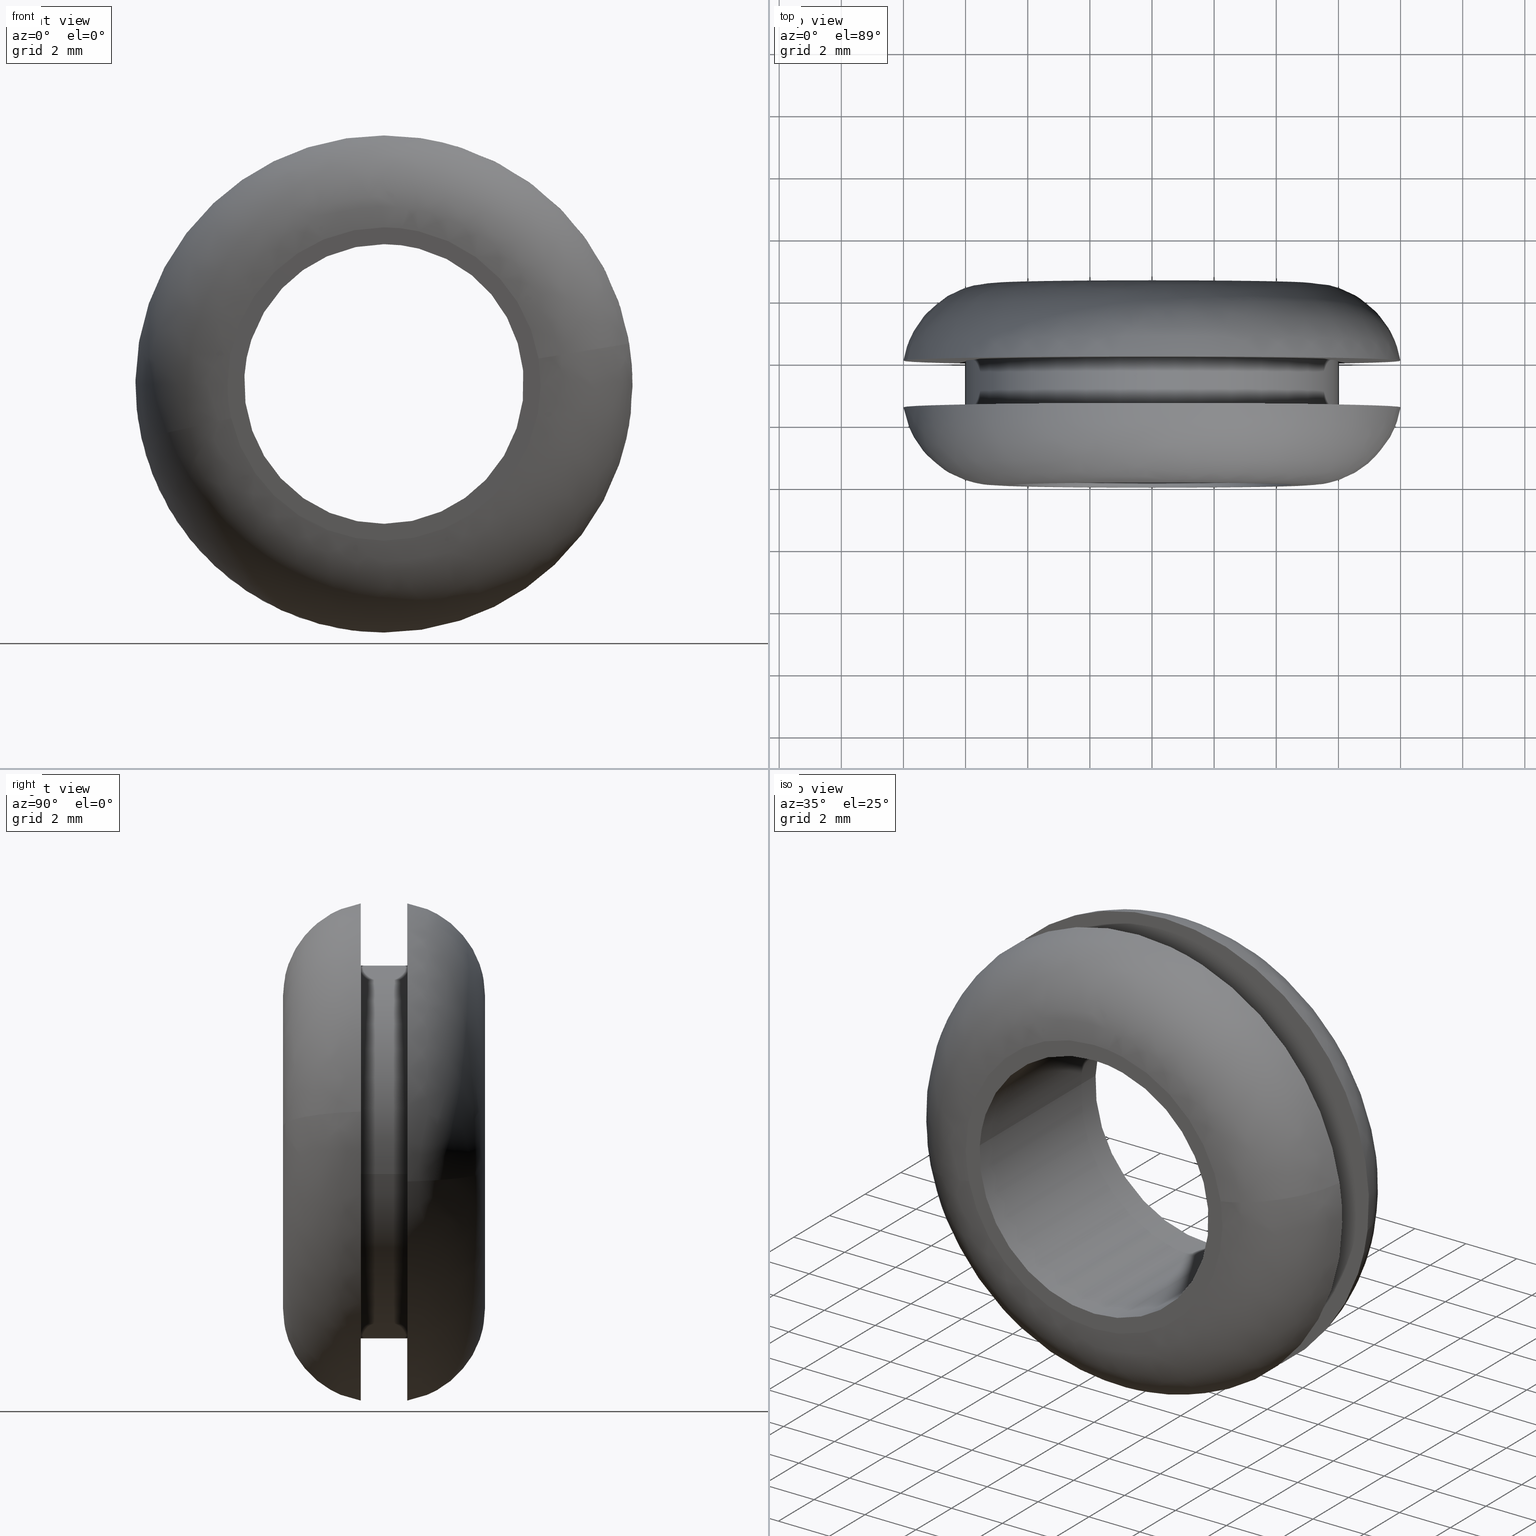
[diagram: canonical four-view strip — front | top / right | iso, engineering-drawing reading convention]
A machine part, canonical four-view strip (front | top / right | iso — engineering-drawing reading convention). The complete STEP part file that produces these views, byte-faithful:
ISO-10303-21;
HEADER;
/****************************************************************
 * Generated by software with PDE/Lib inside                    *
 * PDElib Version 4.4.1-0003, patched  Thursday August 19 11:58 *
 * International Technegroup Inc. (www.iti-oh.com)              *
 ****************************************************************/
FILE_DESCRIPTION((''),'2;1');
FILE_NAME('','2005-12-14T14:11:55',(''),(''),'','CADfix','');
FILE_SCHEMA(('AUTOMOTIVE_DESIGN'));
ENDSEC;
DATA;
#5=APPLICATION_CONTEXT('automotive design');
#6=APPLICATION_PROTOCOL_DEFINITION('Draft International Standard','automotive_design',1998,#5);
#7=PRODUCT_CONTEXT('None',#5,'mechanical');
#8=PRODUCT('grommet','','None',(#7));
#9=PRODUCT_RELATED_PRODUCT_CATEGORY('part','description',(#8));
#10=PRODUCT_DEFINITION_FORMATION('None','None',#8);
#11=PRODUCT_DEFINITION_CONTEXT('part definition',#5,'design');
#12=PRODUCT_DEFINITION('None','None',#10,#11);
#18=(NAMED_UNIT(*)PLANE_ANGLE_UNIT()SI_UNIT($,.RADIAN.));
#19=DIMENSIONAL_EXPONENTS(0.0,0.0,0.0,0.0,0.0,0.0,0.0);
#20=PLANE_ANGLE_MEASURE_WITH_UNIT(PLANE_ANGLE_MEASURE(0.017453292500000),#18);
#24=(CONVERSION_BASED_UNIT('DEGREE',#20)NAMED_UNIT(#19)PLANE_ANGLE_UNIT());
#28=(NAMED_UNIT(*)SI_UNIT($,.STERADIAN.)SOLID_ANGLE_UNIT());
#32=(LENGTH_UNIT()NAMED_UNIT(*)SI_UNIT(.MILLI.,.METRE.));
#34=UNCERTAINTY_MEASURE_WITH_UNIT(LENGTH_MEASURE(0.001000000000000),#32,'DISTANCE_ACCURACY_VALUE','');
#36=(GEOMETRIC_REPRESENTATION_CONTEXT(3)GLOBAL_UNCERTAINTY_ASSIGNED_CONTEXT((#34))GLOBAL_UNIT_ASSIGNED_CONTEXT((#24,#28,#32))REPRESENTATION_CONTEXT('None','None'));
#37=AXIS2_PLACEMENT_3D('',#38,#39,#40);
#38=CARTESIAN_POINT('',(0.0,0.0,0.0));
#39=DIRECTION('',(0.0,0.0,1.0));
#40=DIRECTION('',(1.0,0.0,0.0));
#41=ADVANCED_BREP_SHAPE_REPRESENTATION('',(#37,#917),#36);
#42=PRODUCT_DEFINITION_SHAPE('','',#12);
#43=SHAPE_DEFINITION_REPRESENTATION(#42,#41);
#44=CARTESIAN_POINT('',(5.958057158181998,4.037500000000000,-0.708205407940551));
#45=CARTESIAN_POINT('',(5.978325692691634,4.037500000000000,-0.537688371827866));
#46=CARTESIAN_POINT('',(5.988808790531200,4.037500000000000,-0.366291237209142));
#47=CARTESIAN_POINT('',(6.355100027740342,4.037500000000001,5.622517553322058));
#48=CARTESIAN_POINT('',(0.366291237209142,4.037500000000000,5.988808790531200));
#49=CARTESIAN_POINT('',(-5.622517553322059,4.037500000000001,6.355100027740342));
#50=CARTESIAN_POINT('',(-5.988808790531200,4.037500000000000,0.366291237209142));
#51=CARTESIAN_POINT('',(5.958057158181998,2.461562500000000,-0.708205407940551));
#52=CARTESIAN_POINT('',(5.978325692691634,2.461562500000000,-0.537688371827866));
#53=CARTESIAN_POINT('',(5.988808790531200,2.461562499999999,-0.366291237209142));
#54=CARTESIAN_POINT('',(6.355100027740342,2.461562500000000,5.622517553322058));
#55=CARTESIAN_POINT('',(0.366291237209142,2.461562499999999,5.988808790531200));
#56=CARTESIAN_POINT('',(-5.622517553322059,2.461562500000000,6.355100027740342));
#57=CARTESIAN_POINT('',(-5.988808790531200,2.461562499999999,0.366291237209142));
#65=(BOUNDED_SURFACE()B_SPLINE_SURFACE(2,1,((#44,#51),(#45,#52),(#46,#53),(#47,#54),(#48,#55),(#49,#56),(#50,#57)),.UNSPECIFIED.,.F.,.F.,.U.)B_SPLINE_SURFACE_WITH_KNOTS((3,2,2,3),(2,2),(0.0,0.397645019878172,10.338770516832451,20.279896013786729),(0.0,1.0),.UNSPECIFIED.)GEOMETRIC_REPRESENTATION_ITEM()RATIONAL_B_SPLINE_SURFACE(((0.977505800795127,0.977505800795127),(0.988284271247462,0.988284271247462),(1.0,1.0),(0.707106781186548,0.707106781186548),(1.0,1.0),(0.707106781186548,0.707106781186548),(1.0,1.0)))REPRESENTATION_ITEM('')SURFACE());
#66=CARTESIAN_POINT('',(5.958057818303820,2.499999999999991,-0.708199854361355));
#67=VERTEX_POINT('',#66);
#68=CARTESIAN_POINT('',(0.0,2.500000000000000,6.0));
#69=VERTEX_POINT('',#68);
#70=CARTESIAN_POINT('',(5.958057818303820,2.499999999999990,-0.708199854361355));
#71=CARTESIAN_POINT('',(6.0,2.500000000000000,-0.355341911766386));
#72=CARTESIAN_POINT('',(6.0,2.500000000000000,-3.061516E-016));
#73=CARTESIAN_POINT('',(6.0,2.500000000000000,6.0));
#74=CARTESIAN_POINT('',(0.0,2.500000000000000,6.0));
#82=(BOUNDED_CURVE()B_SPLINE_CURVE(2,(#70,#71,#72,#73,#74),.UNSPECIFIED.,.F.,.U.)B_SPLINE_CURVE_WITH_KNOTS((3,2,3),(0.229562631045684,0.250000000000000,0.500000000000000),.UNSPECIFIED.)CURVE()GEOMETRIC_REPRESENTATION_ITEM()RATIONAL_B_SPLINE_CURVE((0.956027062953443,0.976056132891569,1.0,0.707106781186548,1.0))REPRESENTATION_ITEM(''));
#83=EDGE_CURVE('',#67,#69,#82,.T.);
#84=ORIENTED_EDGE('',*,*,#83,.F.);
#85=CARTESIAN_POINT('',(5.958057810158673,4.0,-0.708199922886695));
#86=VERTEX_POINT('',#85);
#87=CARTESIAN_POINT('',(5.958057810158673,4.0,-0.708199922886695));
#88=CARTESIAN_POINT('',(5.958057818303820,2.499999999999991,-0.708199854361355));
#89=QUASI_UNIFORM_CURVE('',1,(#87,#88),.UNSPECIFIED.,.F.,.U.);
#90=EDGE_CURVE('',#86,#67,#89,.T.);
#91=ORIENTED_EDGE('',*,*,#90,.F.);
#92=CARTESIAN_POINT('',(0.0,4.0,6.0));
#93=VERTEX_POINT('',#92);
#94=CARTESIAN_POINT('',(5.958057810158673,4.000000000000000,-0.708199922886695));
#95=CARTESIAN_POINT('',(6.000000000000001,4.000000000000000,-0.355341946391267));
#96=CARTESIAN_POINT('',(6.0,4.0,-3.061516E-016));
#97=CARTESIAN_POINT('',(6.0,4.000000000000000,6.0));
#98=CARTESIAN_POINT('',(0.0,4.0,6.0));
#106=(BOUNDED_CURVE()B_SPLINE_CURVE(2,(#94,#95,#96,#97,#98),.UNSPECIFIED.,.F.,.U.)B_SPLINE_CURVE_WITH_KNOTS((3,2,3),(0.229562629101929,0.250000000000000,0.500000000000000),.UNSPECIFIED.)CURVE()GEOMETRIC_REPRESENTATION_ITEM()RATIONAL_B_SPLINE_CURVE((0.956027059143597,0.976056130614318,1.0,0.707106781186548,1.0))REPRESENTATION_ITEM(''));
#107=EDGE_CURVE('',#86,#93,#106,.T.);
#108=ORIENTED_EDGE('',*,*,#107,.T.);
#109=CARTESIAN_POINT('',(-5.988809104776754,4.0,0.366286099267417));
#110=VERTEX_POINT('',#109);
#111=CARTESIAN_POINT('',(0.0,4.0,6.0));
#112=CARTESIAN_POINT('',(-5.644241252809525,4.000000000000001,6.000000000000001));
#113=CARTESIAN_POINT('',(-5.988809104776754,4.0,0.366286099267417));
#121=(BOUNDED_CURVE()B_SPLINE_CURVE(2,(#111,#112,#113),.UNSPECIFIED.,.F.,.U.)B_SPLINE_CURVE_WITH_KNOTS((3,3),(0.500000000000000,0.739333110273986),.UNSPECIFIED.)CURVE()GEOMETRIC_REPRESENTATION_ITEM()RATIONAL_B_SPLINE_CURVE((1.0,0.719603819852869,0.976072358934200))REPRESENTATION_ITEM(''));
#122=EDGE_CURVE('',#93,#110,#121,.T.);
#123=ORIENTED_EDGE('',*,*,#122,.T.);
#124=CARTESIAN_POINT('',(-5.988809108703983,2.499999999999951,0.366286035055973));
#125=VERTEX_POINT('',#124);
#126=CARTESIAN_POINT('',(-5.988809104776754,4.0,0.366286099267417));
#127=CARTESIAN_POINT('',(-5.988809108703983,2.499999999999951,0.366286035055973));
#128=QUASI_UNIFORM_CURVE('',1,(#126,#127),.UNSPECIFIED.,.F.,.U.);
#129=EDGE_CURVE('',#110,#125,#128,.T.);
#130=ORIENTED_EDGE('',*,*,#129,.T.);
#131=CARTESIAN_POINT('',(0.0,2.500000000000000,6.0));
#132=CARTESIAN_POINT('',(-5.644241313439628,2.500000000000000,6.0));
#133=CARTESIAN_POINT('',(-5.988809108703984,2.499999999999951,0.366286035055973));
#141=(BOUNDED_CURVE()B_SPLINE_CURVE(2,(#131,#132,#133),.UNSPECIFIED.,.F.,.U.)B_SPLINE_CURVE_WITH_KNOTS((3,3),(0.500000000000000,0.739333112124017),.UNSPECIFIED.)CURVE()GEOMETRIC_REPRESENTATION_ITEM()RATIONAL_B_SPLINE_CURVE((1.0,0.719603817685423,0.976072362899173))REPRESENTATION_ITEM(''));
#142=EDGE_CURVE('',#69,#125,#141,.T.);
#143=ORIENTED_EDGE('',*,*,#142,.F.);
#144=EDGE_LOOP('',(#84,#91,#108,#123,#130,#143));
#145=FACE_OUTER_BOUND('',#144,.T.);
#146=ADVANCED_FACE('',(#145),#65,.T.);
#147=CARTESIAN_POINT('',(-5.988808790531200,4.037500000000000,0.366291237209142));
#148=CARTESIAN_POINT('',(-6.355100027740342,4.037500000000001,-5.622517553322059));
#149=CARTESIAN_POINT('',(-0.366291237209142,4.037500000000000,-5.988808790531200));
#150=CARTESIAN_POINT('',(5.289260945037006,4.037500000000001,-6.334717180395166));
#151=CARTESIAN_POINT('',(5.958057158181998,4.037500000000000,-0.708205407940551));
#152=CARTESIAN_POINT('',(-5.988808790531200,2.461562499999999,0.366291237209142));
#153=CARTESIAN_POINT('',(-6.355100027740342,2.461562500000000,-5.622517553322059));
#154=CARTESIAN_POINT('',(-0.366291237209142,2.461562499999999,-5.988808790531200));
#155=CARTESIAN_POINT('',(5.289260945037006,2.461562499999999,-6.334717180395166));
#156=CARTESIAN_POINT('',(5.958057158181998,2.461562500000000,-0.708205407940551));
#164=(BOUNDED_SURFACE()B_SPLINE_SURFACE(2,1,((#147,#152),(#148,#153),(#149,#154),(#150,#155),(#151,#156)),.UNSPECIFIED.,.F.,.F.,.U.)B_SPLINE_SURFACE_WITH_KNOTS((3,2,3),(2,2),(0.0,9.941125496954278,19.484605974030391),(0.0,1.0),.UNSPECIFIED.)GEOMETRIC_REPRESENTATION_ITEM()RATIONAL_B_SPLINE_SURFACE(((1.0,1.0),(0.707106781186548,0.707106781186548),(1.0,1.0),(0.718822509939086,0.718822509939086),(0.977505800795127,0.977505800795127)))REPRESENTATION_ITEM('')SURFACE());
#165=CARTESIAN_POINT('',(0.0,2.500000000000000,-6.0));
#166=VERTEX_POINT('',#165);
#167=CARTESIAN_POINT('',(0.0,2.500000000000000,-6.0));
#168=CARTESIAN_POINT('',(5.329052157948890,2.500000000000000,-6.0));
#169=CARTESIAN_POINT('',(5.958057818303820,2.499999999999990,-0.708199854361355));
#177=(BOUNDED_CURVE()B_SPLINE_CURVE(2,(#167,#168,#169),.UNSPECIFIED.,.F.,.U.)B_SPLINE_CURVE_WITH_KNOTS((3,3),(0.0,0.229562631045684),.UNSPECIFIED.)CURVE()GEOMETRIC_REPRESENTATION_ITEM()RATIONAL_B_SPLINE_CURVE((1.0,0.731050648294978,0.956027062953443))REPRESENTATION_ITEM(''));
#178=EDGE_CURVE('',#166,#67,#177,.T.);
#179=ORIENTED_EDGE('',*,*,#178,.F.);
#180=CARTESIAN_POINT('',(-5.988809108703984,2.499999999999951,0.366286035055973));
#181=CARTESIAN_POINT('',(-6.0,2.500000000000000,0.183313971421956));
#182=CARTESIAN_POINT('',(-6.0,2.500000000000000,-3.061516E-016));
#183=CARTESIAN_POINT('',(-6.0,2.500000000000000,-6.0));
#184=CARTESIAN_POINT('',(0.0,2.500000000000000,-6.0));
#192=(BOUNDED_CURVE()B_SPLINE_CURVE(2,(#180,#181,#182,#183,#184),.UNSPECIFIED.,.F.,.U.)B_SPLINE_CURVE_WITH_KNOTS((3,2,3),(0.739333112124017,0.750000000000000,1.0),.UNSPECIFIED.)CURVE()GEOMETRIC_REPRESENTATION_ITEM()RATIONAL_B_SPLINE_CURVE((0.976072362899173,0.987502963501124,1.0,0.707106781186548,1.0))REPRESENTATION_ITEM(''));
#193=EDGE_CURVE('',#125,#166,#192,.T.);
#194=ORIENTED_EDGE('',*,*,#193,.F.);
#195=ORIENTED_EDGE('',*,*,#129,.F.);
#196=CARTESIAN_POINT('',(0.0,4.0,-6.0));
#197=VERTEX_POINT('',#196);
#198=CARTESIAN_POINT('',(-5.988809104776754,4.0,0.366286099267417));
#199=CARTESIAN_POINT('',(-6.0,4.000000000000001,0.183314003617696));
#200=CARTESIAN_POINT('',(-6.0,4.0,-3.061516E-016));
#201=CARTESIAN_POINT('',(-6.0,4.000000000000000,-6.0));
#202=CARTESIAN_POINT('',(0.0,4.0,-6.0));
#210=(BOUNDED_CURVE()B_SPLINE_CURVE(2,(#198,#199,#200,#201,#202),.UNSPECIFIED.,.F.,.U.)B_SPLINE_CURVE_WITH_KNOTS((3,2,3),(0.739333110273986,0.750000000000000,1.0),.UNSPECIFIED.)CURVE()GEOMETRIC_REPRESENTATION_ITEM()RATIONAL_B_SPLINE_CURVE((0.976072358934200,0.987502961333678,1.0,0.707106781186548,1.0))REPRESENTATION_ITEM(''));
#211=EDGE_CURVE('',#110,#197,#210,.T.);
#212=ORIENTED_EDGE('',*,*,#211,.T.);
#213=CARTESIAN_POINT('',(0.0,4.0,-6.0));
#214=CARTESIAN_POINT('',(5.329052096226471,4.0,-6.000000000000001));
#215=CARTESIAN_POINT('',(5.958057810158673,4.000000000000000,-0.708199922886695));
#223=(BOUNDED_CURVE()B_SPLINE_CURVE(2,(#213,#214,#215),.UNSPECIFIED.,.F.,.U.)B_SPLINE_CURVE_WITH_KNOTS((3,3),(0.0,0.229562629101929),.UNSPECIFIED.)CURVE()GEOMETRIC_REPRESENTATION_ITEM()RATIONAL_B_SPLINE_CURVE((1.0,0.731050650572230,0.956027059143597))REPRESENTATION_ITEM(''));
#224=EDGE_CURVE('',#197,#86,#223,.T.);
#225=ORIENTED_EDGE('',*,*,#224,.T.);
#226=ORIENTED_EDGE('',*,*,#90,.T.);
#227=EDGE_LOOP('',(#179,#194,#195,#212,#225,#226));
#228=FACE_OUTER_BOUND('',#227,.T.);
#229=ADVANCED_FACE('',(#228),#164,.T.);
#230=CARTESIAN_POINT('',(4.468542868636499,6.662500000000001,-0.531154055955413));
#231=CARTESIAN_POINT('',(4.483744269518725,6.662500000000001,-0.403266278870900));
#232=CARTESIAN_POINT('',(4.491606592898400,6.662500000000001,-0.274718427906857));
#233=CARTESIAN_POINT('',(4.766325020805256,6.662500000000001,4.216888164991543));
#234=CARTESIAN_POINT('',(0.274718427906856,6.662500000000001,4.491606592898400));
#235=CARTESIAN_POINT('',(-4.216888164991543,6.662500000000001,4.766325020805256));
#236=CARTESIAN_POINT('',(-4.491606592898400,6.662500000000001,0.274718427906856));
#237=CARTESIAN_POINT('',(4.468542868636499,-0.166562500000001,-0.531154055955413));
#238=CARTESIAN_POINT('',(4.483744269518725,-0.166562500000001,-0.403266278870900));
#239=CARTESIAN_POINT('',(4.491606592898400,-0.166562500000001,-0.274718427906857));
#240=CARTESIAN_POINT('',(4.766325020805256,-0.166562500000001,4.216888164991543));
#241=CARTESIAN_POINT('',(0.274718427906856,-0.166562500000001,4.491606592898400));
#242=CARTESIAN_POINT('',(-4.216888164991543,-0.166562500000001,4.766325020805256));
#243=CARTESIAN_POINT('',(-4.491606592898400,-0.166562500000001,0.274718427906856));
#251=(BOUNDED_SURFACE()B_SPLINE_SURFACE(2,1,((#230,#237),(#231,#238),(#232,#239),(#233,#240),(#234,#241),(#235,#242),(#236,#243)),.UNSPECIFIED.,.F.,.F.,.U.)B_SPLINE_SURFACE_WITH_KNOTS((3,2,2,3),(2,2),(0.0,0.298233764908629,7.754077887624337,15.209922010340049),(0.0,6.829062500000004),.UNSPECIFIED.)GEOMETRIC_REPRESENTATION_ITEM()RATIONAL_B_SPLINE_SURFACE(((0.977505800795127,0.977505800795127),(0.988284271247462,0.988284271247462),(1.0,1.0),(0.707106781186548,0.707106781186548),(1.0,1.0),(0.707106781186548,0.707106781186548),(1.0,1.0)))REPRESENTATION_ITEM('')SURFACE());
#252=CARTESIAN_POINT('',(4.468542641703280,6.499999999999452,-0.531155965113607));
#253=VERTEX_POINT('',#252);
#254=CARTESIAN_POINT('',(0.0,6.500000000000000,4.500000000000000));
#255=VERTEX_POINT('',#254);
#256=CARTESIAN_POINT('',(4.468542641703280,6.499999999999452,-0.531155965113607));
#257=CARTESIAN_POINT('',(4.500000000000000,6.500000000000000,-0.266509503104442));
#258=CARTESIAN_POINT('',(4.500000000000000,6.500000000000000,-3.061516E-016));
#259=CARTESIAN_POINT('',(4.500000000000000,6.500000000000000,4.500000000000000));
#260=CARTESIAN_POINT('',(0.0,6.500000000000000,4.500000000000000));
#268=(BOUNDED_CURVE()B_SPLINE_CURVE(2,(#256,#257,#258,#259,#260),.UNSPECIFIED.,.F.,.U.)B_SPLINE_CURVE_WITH_KNOTS((3,2,3),(0.229562401310019,0.250000000000000,0.500000000000000),.UNSPECIFIED.)CURVE()GEOMETRIC_REPRESENTATION_ITEM()RATIONAL_B_SPLINE_CURVE((0.956026612661954,0.976055863739495,1.0,0.707106781186547,1.0))REPRESENTATION_ITEM(''));
#269=EDGE_CURVE('',#253,#255,#268,.T.);
#270=ORIENTED_EDGE('',*,*,#269,.F.);
#271=CARTESIAN_POINT('',(4.468542641703280,-9.385989E-016,-0.531155965113607));
#272=VERTEX_POINT('',#271);
#273=CARTESIAN_POINT('',(4.468542641703280,6.499999999999452,-0.531155965113607));
#274=CARTESIAN_POINT('',(4.468542641703280,-9.385989E-016,-0.531155965113607));
#275=QUASI_UNIFORM_CURVE('',1,(#273,#274),.UNSPECIFIED.,.F.,.U.);
#276=EDGE_CURVE('',#253,#272,#275,.T.);
#277=ORIENTED_EDGE('',*,*,#276,.T.);
#278=CARTESIAN_POINT('',(0.0,-8.266093E-016,4.500000000000000));
#279=VERTEX_POINT('',#278);
#280=CARTESIAN_POINT('',(4.468542641703280,-9.385989E-016,-0.531155965113607));
#281=CARTESIAN_POINT('',(4.500000000000000,-8.266093E-016,-0.266509503104442));
#282=CARTESIAN_POINT('',(4.500000000000000,-8.266093E-016,-3.061516E-016));
#283=CARTESIAN_POINT('',(4.500000000000000,-8.266093E-016,4.500000000000000));
#284=CARTESIAN_POINT('',(0.0,-8.266093E-016,4.500000000000000));
#292=(BOUNDED_CURVE()B_SPLINE_CURVE(2,(#280,#281,#282,#283,#284),.UNSPECIFIED.,.F.,.U.)B_SPLINE_CURVE_WITH_KNOTS((3,2,3),(0.229562401310019,0.250000000000000,0.500000000000000),.UNSPECIFIED.)CURVE()GEOMETRIC_REPRESENTATION_ITEM()RATIONAL_B_SPLINE_CURVE((0.956026612661954,0.976055863739495,1.0,0.707106781186547,1.0))REPRESENTATION_ITEM(''));
#293=EDGE_CURVE('',#272,#279,#292,.T.);
#294=ORIENTED_EDGE('',*,*,#293,.T.);
#295=CARTESIAN_POINT('',(-4.491606917686051,-9.545384E-016,0.274713117572676));
#296=VERTEX_POINT('',#295);
#297=CARTESIAN_POINT('',(0.0,-8.266093E-016,4.500000000000000));
#298=CARTESIAN_POINT('',(-4.233182315228993,-8.266093E-016,4.500000000000001));
#299=CARTESIAN_POINT('',(-4.491606917686051,-9.545384E-016,0.274713117572676));
#307=(BOUNDED_CURVE()B_SPLINE_CURVE(2,(#297,#298,#299),.UNSPECIFIED.,.F.,.U.)B_SPLINE_CURVE_WITH_KNOTS((3,3),(0.500000000000000,0.739333166240523),.UNSPECIFIED.)CURVE()GEOMETRIC_REPRESENTATION_ITEM()RATIONAL_B_SPLINE_CURVE((1.0,0.719603754283992,0.976072478881328))REPRESENTATION_ITEM(''));
#308=EDGE_CURVE('',#279,#296,#307,.T.);
#309=ORIENTED_EDGE('',*,*,#308,.T.);
#310=CARTESIAN_POINT('',(-4.491606921645149,6.499999999999988,0.274713052839469));
#311=VERTEX_POINT('',#310);
#312=CARTESIAN_POINT('',(-4.491606921645149,6.499999999999988,0.274713052839469));
#313=CARTESIAN_POINT('',(-4.491606917686051,-9.545384E-016,0.274713117572676));
#314=QUASI_UNIFORM_CURVE('',1,(#312,#313),.UNSPECIFIED.,.F.,.U.);
#315=EDGE_CURVE('',#311,#296,#314,.T.);
#316=ORIENTED_EDGE('',*,*,#315,.F.);
#317=CARTESIAN_POINT('',(0.0,6.500000000000000,4.500000000000000));
#318=CARTESIAN_POINT('',(-4.233182376351771,6.500000000000000,4.500000000000000));
#319=CARTESIAN_POINT('',(-4.491606921645149,6.499999999999988,0.274713052839469));
#327=(BOUNDED_CURVE()B_SPLINE_CURVE(2,(#317,#318,#319),.UNSPECIFIED.,.F.,.U.)B_SPLINE_CURVE_WITH_KNOTS((3,3),(0.500000000000000,0.739333168727275),.UNSPECIFIED.)CURVE()GEOMETRIC_REPRESENTATION_ITEM()RATIONAL_B_SPLINE_CURVE((1.0,0.719603751370581,0.976072484210920))REPRESENTATION_ITEM(''));
#328=EDGE_CURVE('',#255,#311,#327,.T.);
#329=ORIENTED_EDGE('',*,*,#328,.F.);
#330=EDGE_LOOP('',(#270,#277,#294,#309,#316,#329));
#331=FACE_OUTER_BOUND('',#330,.T.);
#332=ADVANCED_FACE('',(#331),#251,.F.);
#333=CARTESIAN_POINT('',(-4.491606592898400,6.662500000000001,0.274718427906856));
#334=CARTESIAN_POINT('',(-4.766325020805256,6.662500000000001,-4.216888164991544));
#335=CARTESIAN_POINT('',(-0.274718427906856,6.662500000000001,-4.491606592898400));
#336=CARTESIAN_POINT('',(3.966945708777753,6.662500000000001,-4.751037885296373));
#337=CARTESIAN_POINT('',(4.468542868636499,6.662500000000001,-0.531154055955413));
#338=CARTESIAN_POINT('',(-4.491606592898400,-0.166562500000001,0.274718427906856));
#339=CARTESIAN_POINT('',(-4.766325020805256,-0.166562500000001,-4.216888164991544));
#340=CARTESIAN_POINT('',(-0.274718427906856,-0.166562500000001,-4.491606592898400));
#341=CARTESIAN_POINT('',(3.966945708777753,-0.166562500000001,-4.751037885296373));
#342=CARTESIAN_POINT('',(4.468542868636499,-0.166562500000001,-0.531154055955413));
#350=(BOUNDED_SURFACE()B_SPLINE_SURFACE(2,1,((#333,#338),(#334,#339),(#335,#340),(#336,#341),(#337,#342)),.UNSPECIFIED.,.F.,.F.,.U.)B_SPLINE_SURFACE_WITH_KNOTS((3,2,3),(2,2),(0.0,7.455844122715709,14.613454480522790),(0.0,6.829062500000004),.UNSPECIFIED.)GEOMETRIC_REPRESENTATION_ITEM()RATIONAL_B_SPLINE_SURFACE(((1.0,1.0),(0.707106781186548,0.707106781186548),(1.0,1.0),(0.718822509939086,0.718822509939086),(0.977505800795127,0.977505800795127)))REPRESENTATION_ITEM('')SURFACE());
#351=CARTESIAN_POINT('',(0.0,6.500000000000000,-4.500000000000000));
#352=VERTEX_POINT('',#351);
#353=CARTESIAN_POINT('',(0.0,6.500000000000000,-4.500000000000000));
#354=CARTESIAN_POINT('',(3.996783647157785,6.500000000000002,-4.500000000000000));
#355=CARTESIAN_POINT('',(4.468542641703280,6.499999999999452,-0.531155965113607));
#363=(BOUNDED_CURVE()B_SPLINE_CURVE(2,(#353,#354,#355),.UNSPECIFIED.,.F.,.U.)B_SPLINE_CURVE_WITH_KNOTS((3,3),(0.0,0.229562401310019),.UNSPECIFIED.)CURVE()GEOMETRIC_REPRESENTATION_ITEM()RATIONAL_B_SPLINE_CURVE((1.0,0.731050917447052,0.956026612661954))REPRESENTATION_ITEM(''));
#364=EDGE_CURVE('',#352,#253,#363,.T.);
#365=ORIENTED_EDGE('',*,*,#364,.F.);
#366=CARTESIAN_POINT('',(-4.491606921645149,6.499999999999988,0.274713052839469));
#367=CARTESIAN_POINT('',(-4.500000000000000,6.500000000000000,0.137484739774620));
#368=CARTESIAN_POINT('',(-4.500000000000000,6.500000000000000,-3.061516E-016));
#369=CARTESIAN_POINT('',(-4.500000000000000,6.500000000000000,-4.500000000000000));
#370=CARTESIAN_POINT('',(0.0,6.500000000000000,-4.500000000000000));
#378=(BOUNDED_CURVE()B_SPLINE_CURVE(2,(#366,#367,#368,#369,#370),.UNSPECIFIED.,.F.,.U.)B_SPLINE_CURVE_WITH_KNOTS((3,2,3),(0.739333168727275,0.750000000000000,1.0),.UNSPECIFIED.)CURVE()GEOMETRIC_REPRESENTATION_ITEM()RATIONAL_B_SPLINE_CURVE((0.976072484210920,0.987503029815966,1.0,0.707106781186547,1.0))REPRESENTATION_ITEM(''));
#379=EDGE_CURVE('',#311,#352,#378,.T.);
#380=ORIENTED_EDGE('',*,*,#379,.F.);
#381=ORIENTED_EDGE('',*,*,#315,.T.);
#382=CARTESIAN_POINT('',(0.0,-8.266093E-016,-4.500000000000000));
#383=VERTEX_POINT('',#382);
#384=CARTESIAN_POINT('',(-4.491606917686051,-9.545384E-016,0.274713117572676));
#385=CARTESIAN_POINT('',(-4.500000000000000,-8.266093E-016,0.137484772231970));
#386=CARTESIAN_POINT('',(-4.500000000000000,-8.266093E-016,-3.061516E-016));
#387=CARTESIAN_POINT('',(-4.500000000000000,-8.266093E-016,-4.500000000000000));
#388=CARTESIAN_POINT('',(0.0,-8.266093E-016,-4.500000000000000));
#396=(BOUNDED_CURVE()B_SPLINE_CURVE(2,(#384,#385,#386,#387,#388),.UNSPECIFIED.,.F.,.U.)B_SPLINE_CURVE_WITH_KNOTS((3,2,3),(0.739333166240523,0.750000000000000,1.0),.UNSPECIFIED.)CURVE()GEOMETRIC_REPRESENTATION_ITEM()RATIONAL_B_SPLINE_CURVE((0.976072478881328,0.987503026902556,1.0,0.707106781186547,1.0))REPRESENTATION_ITEM(''));
#397=EDGE_CURVE('',#296,#383,#396,.T.);
#398=ORIENTED_EDGE('',*,*,#397,.T.);
#399=CARTESIAN_POINT('',(0.0,-8.266093E-016,-4.500000000000000));
#400=CARTESIAN_POINT('',(3.996783647157785,-8.266093E-016,-4.500000000000000));
#401=CARTESIAN_POINT('',(4.468542641703280,-9.385989E-016,-0.531155965113607));
#409=(BOUNDED_CURVE()B_SPLINE_CURVE(2,(#399,#400,#401),.UNSPECIFIED.,.F.,.U.)B_SPLINE_CURVE_WITH_KNOTS((3,3),(0.0,0.229562401310019),.UNSPECIFIED.)CURVE()GEOMETRIC_REPRESENTATION_ITEM()RATIONAL_B_SPLINE_CURVE((1.0,0.731050917447052,0.956026612661954))REPRESENTATION_ITEM(''));
#410=EDGE_CURVE('',#383,#272,#409,.T.);
#411=ORIENTED_EDGE('',*,*,#410,.T.);
#412=ORIENTED_EDGE('',*,*,#276,.F.);
#413=EDGE_LOOP('',(#365,#380,#381,#398,#411,#412));
#414=FACE_OUTER_BOUND('',#413,.T.);
#415=ADVANCED_FACE('',(#414),#350,.F.);
#416=CARTESIAN_POINT('',(4.816963873766415,6.493922733300470,-0.574501894876386));
#417=CARTESIAN_POINT('',(5.359496714422442,6.493922733300471,3.974414509192696));
#418=CARTESIAN_POINT('',(0.849054761482396,6.493922733300471,4.776222293862730));
#419=CARTESIAN_POINT('',(-3.927167532380334,6.493922733300472,5.625277055345126));
#420=CARTESIAN_POINT('',(-4.776222293862730,6.493922733300471,0.849054761482397));
#421=CARTESIAN_POINT('',(7.673148822881862,6.677290290301736,-0.915148764644421));
#422=CARTESIAN_POINT('',(8.537372706794766,6.677290290301735,6.331015721114658));
#423=CARTESIAN_POINT('',(1.352495828152607,6.677290290301738,7.608249808882023));
#424=CARTESIAN_POINT('',(-6.255753980729413,6.677290290301737,8.960745637034625));
#425=CARTESIAN_POINT('',(-7.608249808882023,6.677290290301738,1.352495828152607));
#426=CARTESIAN_POINT('',(7.969368037149914,3.810504205938126,-0.950477761156643));
#427=CARTESIAN_POINT('',(8.866954980447375,3.810504205938124,6.575422358561175));
#428=CARTESIAN_POINT('',(1.404708454385198,3.810504205938125,7.901963619517538));
#429=CARTESIAN_POINT('',(-6.497255165132343,3.810504205938126,9.306672073902739));
#430=CARTESIAN_POINT('',(-7.901963619517538,3.810504205938125,1.404708454385198));
#438=(BOUNDED_SURFACE()B_SPLINE_SURFACE(2,2,((#416,#421,#426),(#417,#422,#427),(#418,#423,#428),(#419,#424,#429),(#420,#425,#430)),.UNSPECIFIED.,.F.,.F.,.U.)B_SPLINE_SURFACE_WITH_KNOTS((3,2,3),(3,3),(0.0,12.765753827807099,26.063414065106159),(0.0,4.830461721013430),.UNSPECIFIED.)GEOMETRIC_REPRESENTATION_ITEM()RATIONAL_B_SPLINE_SURFACE(((0.897575269471763,0.646736018057357,0.896136064804100),(0.660044480079939,0.475586341676794,0.658986140875523),(0.918230120723227,0.661618598612188,0.916757797319628),(0.649286745053136,0.467834997637819,0.648245655190352),(0.918230120723227,0.661618598612188,0.916757797319628)))REPRESENTATION_ITEM('')SURFACE());
#439=CARTESIAN_POINT('',(7.943702172782295,4.000001249126272,-0.947412622172427));
#440=VERTEX_POINT('',#439);
#441=CARTESIAN_POINT('',(0.0,3.999999988287755,7.999999893529521));
#442=VERTEX_POINT('',#441);
#443=CARTESIAN_POINT('',(7.943702172782295,4.000001249126272,-0.947412622172427));
#444=CARTESIAN_POINT('',(7.999999687489360,4.000001215867594,-0.475378964967168));
#445=CARTESIAN_POINT('',(7.999999693776911,4.000001178406585,0.000000023823670));
#446=CARTESIAN_POINT('',(7.999999799588103,4.000000547987328,7.999999904733527));
#447=CARTESIAN_POINT('',(0.0,3.999999988287755,7.999999893529521));
#455=(BOUNDED_CURVE()B_SPLINE_CURVE(2,(#443,#444,#445,#446,#447),.UNSPECIFIED.,.F.,.U.)B_SPLINE_CURVE_WITH_KNOTS((3,2,3),(0.229495701666636,0.250000000000000,0.500000000000000),.UNSPECIFIED.)CURVE()GEOMETRIC_REPRESENTATION_ITEM()RATIONAL_B_SPLINE_CURVE((0.955895920418741,0.975977720246519,1.0,0.707106781186547,1.0))REPRESENTATION_ITEM(''));
#456=EDGE_CURVE('',#440,#442,#455,.T.);
#457=ORIENTED_EDGE('',*,*,#456,.F.);
#458=CARTESIAN_POINT('',(5.006478474712188,6.500000000000000,-0.597104617303462));
#459=VERTEX_POINT('',#458);
#460=CARTESIAN_POINT('',(5.006478474712188,6.500000000000000,-0.597104617303462));
#461=CARTESIAN_POINT('',(7.524097718139170,6.499999999972721,-0.897369945380144));
#462=CARTESIAN_POINT('',(7.943702172782297,4.000001249126272,-0.947412622172427));
#470=(BOUNDED_CURVE()B_SPLINE_CURVE(2,(#460,#461,#462),.UNSPECIFIED.,.F.,.U.)B_SPLINE_CURVE_WITH_KNOTS((3,3),(-1.711130095560332,-0.293356810133895),.UNSPECIFIED.)CURVE()GEOMETRIC_REPRESENTATION_ITEM()RATIONAL_B_SPLINE_CURVE((0.875824093680171,0.668421898418173,0.874515480675706))REPRESENTATION_ITEM(''));
#471=EDGE_CURVE('',#459,#440,#470,.T.);
#472=ORIENTED_EDGE('',*,*,#471,.F.);
#473=CARTESIAN_POINT('',(0.0,6.500000000000000,5.041960000000000));
#474=VERTEX_POINT('',#473);
#475=CARTESIAN_POINT('',(5.006478474712188,6.500000000000000,-0.597104617303462));
#476=CARTESIAN_POINT('',(5.041960000000000,6.500000000000000,-0.299606511386027));
#477=CARTESIAN_POINT('',(5.041960000000000,6.500000000000000,-3.061516E-016));
#478=CARTESIAN_POINT('',(5.041960000000000,6.500000000000001,5.041960000000000));
#479=CARTESIAN_POINT('',(0.0,6.500000000000000,5.041960000000000));
#487=(BOUNDED_CURVE()B_SPLINE_CURVE(2,(#475,#476,#477,#478,#479),.UNSPECIFIED.,.F.,.U.)B_SPLINE_CURVE_WITH_KNOTS((3,2,3),(0.229495616428847,0.250000000000000,0.500000000000000),.UNSPECIFIED.)CURVE()GEOMETRIC_REPRESENTATION_ITEM()RATIONAL_B_SPLINE_CURVE((0.955895753455941,0.975977620384237,1.0,0.707106781186548,1.0))REPRESENTATION_ITEM(''));
#488=EDGE_CURVE('',#459,#474,#487,.T.);
#489=ORIENTED_EDGE('',*,*,#488,.T.);
#490=CARTESIAN_POINT('',(-4.964133992170910,6.500000000000000,0.882459262458416));
#491=VERTEX_POINT('',#490);
#492=CARTESIAN_POINT('',(0.0,6.500000000000000,5.041960000000000));
#493=CARTESIAN_POINT('',(-4.224711978346065,6.500000000000000,5.041959999999999));
#494=CARTESIAN_POINT('',(-4.964133992170910,6.500000000000000,0.882459262458416));
#502=(BOUNDED_CURVE()B_SPLINE_CURVE(2,(#492,#493,#494),.UNSPECIFIED.,.F.,.U.)B_SPLINE_CURVE_WITH_KNOTS((3,3),(0.500000000000000,0.719918253209073),.UNSPECIFIED.)CURVE()GEOMETRIC_REPRESENTATION_ITEM()RATIONAL_B_SPLINE_CURVE((1.0,0.742349739767051,0.937995440888447))REPRESENTATION_ITEM(''));
#503=EDGE_CURVE('',#474,#491,#502,.T.);
#504=ORIENTED_EDGE('',*,*,#503,.T.);
#505=CARTESIAN_POINT('',(-7.876514917801297,4.000000767646103,1.400181751897144));
#506=VERTEX_POINT('',#505);
#507=CARTESIAN_POINT('',(-4.964133992170910,6.500000000000000,0.882459262458416));
#508=CARTESIAN_POINT('',(-7.460459782287119,6.499999999911852,1.326222255441417));
#509=CARTESIAN_POINT('',(-7.876514917801297,4.000000767646104,1.400181751897144));
#517=(BOUNDED_CURVE()B_SPLINE_CURVE(2,(#507,#508,#509),.UNSPECIFIED.,.F.,.U.)B_SPLINE_CURVE_WITH_KNOTS((3,3),(-1.711130095533902,-0.293356631512929),.UNSPECIFIED.)CURVE()GEOMETRIC_REPRESENTATION_ITEM()RATIONAL_B_SPLINE_CURVE((0.895978410521985,0.683803484079920,0.894639737068132))REPRESENTATION_ITEM(''));
#518=EDGE_CURVE('',#491,#506,#517,.T.);
#519=ORIENTED_EDGE('',*,*,#518,.T.);
#520=CARTESIAN_POINT('',(0.0,3.999999988287755,7.999999893529521));
#521=CARTESIAN_POINT('',(-6.703287421846416,3.999999988287756,7.999999893529521));
#522=CARTESIAN_POINT('',(-7.876514917801297,4.000000767646103,1.400181751897144));
#530=(BOUNDED_CURVE()B_SPLINE_CURVE(2,(#520,#521,#522),.UNSPECIFIED.,.F.,.U.)B_SPLINE_CURVE_WITH_KNOTS((3,3),(0.500000000000000,0.719918309591825),.UNSPECIFIED.)CURVE()GEOMETRIC_REPRESENTATION_ITEM()RATIONAL_B_SPLINE_CURVE((1.0,0.742349673710548,0.937995541207963))REPRESENTATION_ITEM(''));
#531=EDGE_CURVE('',#442,#506,#530,.T.);
#532=ORIENTED_EDGE('',*,*,#531,.F.);
#533=EDGE_LOOP('',(#457,#472,#489,#504,#519,#532));
#534=FACE_OUTER_BOUND('',#533,.T.);
#535=ADVANCED_FACE('',(#534),#438,.T.);
#536=CARTESIAN_POINT('',(-4.776222293862730,6.493922733300471,0.849054761482396));
#537=CARTESIAN_POINT('',(-5.625277055345126,6.493922733300472,-3.927167532380336));
#538=CARTESIAN_POINT('',(-0.849054761482396,6.493922733300471,-4.776222293862730));
#539=CARTESIAN_POINT('',(3.927167532380334,6.493922733300472,-5.625277055345126));
#540=CARTESIAN_POINT('',(4.776222293862730,6.493922733300471,-0.849054761482396));
#541=CARTESIAN_POINT('',(4.800521852909155,6.493922733300471,-0.712361463342321));
#542=CARTESIAN_POINT('',(4.816963842059988,6.493922733300469,-0.574502160721765));
#543=CARTESIAN_POINT('',(-7.608249808882023,6.677290290301738,1.352495828152605));
#544=CARTESIAN_POINT('',(-8.960745637034624,6.677290290301737,-6.255753980729417));
#545=CARTESIAN_POINT('',(-1.352495828152605,6.677290290301738,-7.608249808882023));
#546=CARTESIAN_POINT('',(6.255753980729415,6.677290290301737,-8.960745637034625));
#547=CARTESIAN_POINT('',(7.608249808882023,6.677290290301738,-1.352495828152606));
#548=CARTESIAN_POINT('',(7.646957621059949,6.677290290301739,-1.134751197466962));
#549=CARTESIAN_POINT('',(7.673148772375331,6.677290290301736,-0.915149188120954));
#550=CARTESIAN_POINT('',(-7.901963619517539,3.810504205938125,1.404708454385196));
#551=CARTESIAN_POINT('',(-9.306672073902735,3.810504205938126,-6.497255165132343));
#552=CARTESIAN_POINT('',(-1.404708454385197,3.810504205938125,-7.901963619517539));
#553=CARTESIAN_POINT('',(6.497255165132343,3.810504205938126,-9.306672073902739));
#554=CARTESIAN_POINT('',(7.901963619517538,3.810504205938125,-1.404708454385197));
#555=CARTESIAN_POINT('',(7.942165733184212,3.810504205938126,-1.178557868738737));
#556=CARTESIAN_POINT('',(7.969367984693595,3.810504205938126,-0.950478200981338));
#564=(BOUNDED_SURFACE()B_SPLINE_SURFACE(2,2,((#536,#543,#550),(#537,#544,#551),(#538,#545,#552),(#539,#546,#553),(#540,#547,#554),(#541,#548,#555),(#542,#549,#556)),.UNSPECIFIED.,.F.,.F.,.U.)B_SPLINE_SURFACE_WITH_KNOTS((3,2,2,3),(3,3),(0.0,13.297660237299061,26.595320474598129,27.127226376824609),(0.0,4.830461721013431),.UNSPECIFIED.)GEOMETRIC_REPRESENTATION_ITEM()RATIONAL_B_SPLINE_SURFACE(((0.918230120723227,0.661618598612188,0.916757797319628),(0.649286745053136,0.467834997637819,0.648245655190352),(0.918230120723227,0.661618598612188,0.916757797319628),(0.649286745053136,0.467834997637819,0.648245655190352),(0.918230120723227,0.661618598612188,0.916757797319628),(0.907472395955798,0.653867261965471,0.906017321877383),(0.897575288349015,0.646736031659112,0.896136083651083)))REPRESENTATION_ITEM('')SURFACE());
#565=CARTESIAN_POINT('',(0.0,3.999999988287755,-7.999999893529521));
#566=VERTEX_POINT('',#565);
#567=CARTESIAN_POINT('',(0.0,3.999999988287755,-7.999999893529521));
#568=CARTESIAN_POINT('',(7.102569261442119,4.000000618707014,-7.999999880909854));
#569=CARTESIAN_POINT('',(7.943702172782295,4.000001249126272,-0.947412622172427));
#577=(BOUNDED_CURVE()B_SPLINE_CURVE(2,(#567,#568,#569),.UNSPECIFIED.,.F.,.U.)B_SPLINE_CURVE_WITH_KNOTS((3,3),(0.0,0.229495701666636),.UNSPECIFIED.)CURVE()GEOMETRIC_REPRESENTATION_ITEM()RATIONAL_B_SPLINE_CURVE((1.0,0.731129060940029,0.955895920418741))REPRESENTATION_ITEM(''));
#578=EDGE_CURVE('',#566,#440,#577,.T.);
#579=ORIENTED_EDGE('',*,*,#578,.F.);
#580=CARTESIAN_POINT('',(-7.876514917801297,4.000000767646103,1.400181751897144));
#581=CARTESIAN_POINT('',(-7.999999893529521,3.999999988287756,0.705536075905622));
#582=CARTESIAN_POINT('',(-7.999999893529521,3.999999988287755,-3.061516E-016));
#583=CARTESIAN_POINT('',(-7.999999893529521,3.999999988287755,-7.999999893529521));
#584=CARTESIAN_POINT('',(0.0,3.999999988287755,-7.999999893529521));
#592=(BOUNDED_CURVE()B_SPLINE_CURVE(2,(#580,#581,#582,#583,#584),.UNSPECIFIED.,.F.,.U.)B_SPLINE_CURVE_WITH_KNOTS((3,2,3),(0.719918309591825,0.750000000000000,1.0),.UNSPECIFIED.)CURVE()GEOMETRIC_REPRESENTATION_ITEM()RATIONAL_B_SPLINE_CURVE((0.937995541207963,0.964757107476000,1.0,0.707106781186547,1.0))REPRESENTATION_ITEM(''));
#593=EDGE_CURVE('',#506,#566,#592,.T.);
#594=ORIENTED_EDGE('',*,*,#593,.F.);
#595=ORIENTED_EDGE('',*,*,#518,.F.);
#596=CARTESIAN_POINT('',(0.0,6.500000000000000,-5.041960000000000));
#597=VERTEX_POINT('',#596);
#598=CARTESIAN_POINT('',(-4.964133992170910,6.500000000000000,0.882459262458416));
#599=CARTESIAN_POINT('',(-5.041960000000000,6.500000000000000,0.444661453959631));
#600=CARTESIAN_POINT('',(-5.041960000000000,6.500000000000000,-3.061516E-016));
#601=CARTESIAN_POINT('',(-5.041960000000000,6.500000000000001,-5.041960000000000));
#602=CARTESIAN_POINT('',(0.0,6.500000000000000,-5.041960000000000));
#610=(BOUNDED_CURVE()B_SPLINE_CURVE(2,(#598,#599,#600,#601,#602),.UNSPECIFIED.,.F.,.U.)B_SPLINE_CURVE_WITH_KNOTS((3,2,3),(0.719918253209072,0.750000000000000,1.0),.UNSPECIFIED.)CURVE()GEOMETRIC_REPRESENTATION_ITEM()RATIONAL_B_SPLINE_CURVE((0.937995440888446,0.964757041419496,1.0,0.707106781186548,1.0))REPRESENTATION_ITEM(''));
#611=EDGE_CURVE('',#491,#597,#610,.T.);
#612=ORIENTED_EDGE('',*,*,#611,.T.);
#613=CARTESIAN_POINT('',(0.0,6.500000000000000,-5.041960000000000));
#614=CARTESIAN_POINT('',(4.476356616450283,6.500000000000001,-5.041959999999999));
#615=CARTESIAN_POINT('',(5.006478474712187,6.500000000000000,-0.597104617303462));
#623=(BOUNDED_CURVE()B_SPLINE_CURVE(2,(#613,#614,#615),.UNSPECIFIED.,.F.,.U.)B_SPLINE_CURVE_WITH_KNOTS((3,3),(0.0,0.229495616428847),.UNSPECIFIED.)CURVE()GEOMETRIC_REPRESENTATION_ITEM()RATIONAL_B_SPLINE_CURVE((1.0,0.731129160802311,0.955895753455941))REPRESENTATION_ITEM(''));
#624=EDGE_CURVE('',#597,#459,#623,.T.);
#625=ORIENTED_EDGE('',*,*,#624,.T.);
#626=ORIENTED_EDGE('',*,*,#471,.T.);
#627=EDGE_LOOP('',(#579,#594,#595,#612,#625,#626));
#628=FACE_OUTER_BOUND('',#627,.T.);
#629=ADVANCED_FACE('',(#628),#564,.T.);
#630=CARTESIAN_POINT('',(-7.831330557743068,2.689046502678746,-1.756059669706950));
#631=CARTESIAN_POINT('',(-6.172989567984288,2.689046502678746,-9.151603620911683));
#632=CARTESIAN_POINT('',(1.305293545111996,2.689046502678746,-7.918945171504888));
#633=CARTESIAN_POINT('',(9.224238716616883,2.689046502678747,-6.613651626392897));
#634=CARTESIAN_POINT('',(7.918945171504887,2.689046502678746,1.305293545111999));
#635=CARTESIAN_POINT('',(-7.539818817502022,-0.177699000824315,-1.690692487654182));
#636=CARTESIAN_POINT('',(-5.943207550971391,-0.177699000824316,-8.810946324190820));
#637=CARTESIAN_POINT('',(1.256705582944471,-0.177699000824315,-7.624172083994697));
#638=CARTESIAN_POINT('',(8.880877666939165,-0.177699000824316,-6.367466501050229));
#639=CARTESIAN_POINT('',(7.624172083994696,-0.177699000824315,1.256705582944474));
#640=CARTESIAN_POINT('',(-4.733112473003720,0.006106330215611,-1.061330238168890));
#641=CARTESIAN_POINT('',(-3.730841611718217,0.006106330215611,-5.531061283487222));
#642=CARTESIAN_POINT('',(0.788895464665626,0.006106330215611,-4.786065137708119));
#643=CARTESIAN_POINT('',(5.574960602373740,0.006106330215611,-3.997169673042494));
#644=CARTESIAN_POINT('',(4.786065137708119,0.006106330215611,0.788895464665628));
#652=(BOUNDED_SURFACE()B_SPLINE_SURFACE(2,2,((#630,#635,#640),(#631,#636,#641),(#632,#637,#642),(#633,#638,#643),(#634,#639,#644)),.UNSPECIFIED.,.F.,.F.,.U.)B_SPLINE_SURFACE_WITH_KNOTS((3,2,3),(3,3),(0.0,12.765679408416970,26.063262125517991),(0.0,4.830464040311019),.UNSPECIFIED.)GEOMETRIC_REPRESENTATION_ITEM()RATIONAL_B_SPLINE_SURFACE(((0.895726498561901,0.644846316304249,0.892746995006884),(0.658684960632946,0.474196723163942,0.656493941181146),(0.916338806207898,0.659685411359928,0.913290738817818),(0.647949383733990,0.466468027822443,0.645794074612951),(0.916338806207898,0.659685411359928,0.913290738817818)))REPRESENTATION_ITEM('')SURFACE());
#653=CARTESIAN_POINT('',(-7.806154549626388,2.500000008896763,-1.750414323469428));
#654=VERTEX_POINT('',#653);
#655=CARTESIAN_POINT('',(0.0,2.500000000000000,-8.0));
#656=VERTEX_POINT('',#655);
#657=CARTESIAN_POINT('',(-7.806154549626388,2.500000008896763,-1.750414323469427));
#658=CARTESIAN_POINT('',(-6.404777752301630,2.500000000000000,-8.0));
#659=CARTESIAN_POINT('',(0.0,2.500000000000000,-8.0));
#667=(BOUNDED_CURVE()B_SPLINE_CURVE(2,(#657,#658,#659),.UNSPECIFIED.,.F.,.U.)B_SPLINE_CURVE_WITH_KNOTS((3,3),(0.787436176722882,1.0),.UNSPECIFIED.)CURVE()GEOMETRIC_REPRESENTATION_ITEM()RATIONAL_B_SPLINE_CURVE((0.925416950449343,0.750965990388284,1.0))REPRESENTATION_ITEM(''));
#668=EDGE_CURVE('',#654,#656,#667,.T.);
#669=ORIENTED_EDGE('',*,*,#668,.T.);
#670=CARTESIAN_POINT('',(7.893489028008903,2.500003763030137,1.301091954507213));
#671=VERTEX_POINT('',#670);
#672=CARTESIAN_POINT('',(0.0,2.500000000000000,-8.0));
#673=CARTESIAN_POINT('',(8.000000243604225,2.500001596771400,-7.999999959846464));
#674=CARTESIAN_POINT('',(8.000000530649082,2.500003478286468,0.000000087467437));
#675=CARTESIAN_POINT('',(8.000000554147494,2.500003632313317,0.654905709400193));
#676=CARTESIAN_POINT('',(7.893489028008903,2.500003763030137,1.301091954507212));
#684=(BOUNDED_CURVE()B_SPLINE_CURVE(2,(#672,#673,#674,#675,#676),.UNSPECIFIED.,.F.,.U.)B_SPLINE_CURVE_WITH_KNOTS((3,2,3),(0.0,0.250000000000000,0.277993776009529),.UNSPECIFIED.)CURVE()GEOMETRIC_REPRESENTATION_ITEM()RATIONAL_B_SPLINE_CURVE((1.0,0.707106781186548,1.0,0.967203251351305,0.941751341386709))REPRESENTATION_ITEM(''));
#685=EDGE_CURVE('',#656,#671,#684,.T.);
#686=ORIENTED_EDGE('',*,*,#685,.T.);
#687=CARTESIAN_POINT('',(4.974831063378677,-8.939834E-017,0.820010081490540));
#688=VERTEX_POINT('',#687);
#689=CARTESIAN_POINT('',(7.893489028008905,2.500003763030138,1.301091954507212));
#690=CARTESIAN_POINT('',(7.476540246144787,-4.236501E-009,1.232368364594127));
#691=CARTESIAN_POINT('',(4.974831063378677,-8.939834E-017,0.820010081490540));
#699=(BOUNDED_CURVE()B_SPLINE_CURVE(2,(#689,#690,#691),.UNSPECIFIED.,.F.,.U.)B_SPLINE_CURVE_WITH_KNOTS((3,3),(-1.708625560262235,-0.300625566020885),.UNSPECIFIED.)CURVE()GEOMETRIC_REPRESENTATION_ITEM()RATIONAL_B_SPLINE_CURVE((0.894080231362465,0.681805578434915,0.891308979898982))REPRESENTATION_ITEM(''));
#700=EDGE_CURVE('',#671,#688,#699,.T.);
#701=ORIENTED_EDGE('',*,*,#700,.T.);
#702=CARTESIAN_POINT('',(0.0,-9.261624E-016,-5.041960000000000));
#703=VERTEX_POINT('',#702);
#704=CARTESIAN_POINT('',(0.0,-9.261624E-016,-5.041960000000000));
#705=CARTESIAN_POINT('',(5.041960000000000,-9.261624E-016,-5.041960000000000));
#706=CARTESIAN_POINT('',(5.041960000000000,-9.261624E-016,-3.061516E-016));
#707=CARTESIAN_POINT('',(5.041960000000000,-9.261624E-016,0.412752747310127));
#708=CARTESIAN_POINT('',(4.974831063378677,-8.939834E-017,0.820010081490540));
#716=(BOUNDED_CURVE()B_SPLINE_CURVE(2,(#704,#705,#706,#707,#708),.UNSPECIFIED.,.F.,.U.)B_SPLINE_CURVE_WITH_KNOTS((3,2,3),(0.0,0.250000000000000,0.277993891203424),.UNSPECIFIED.)CURVE()GEOMETRIC_REPRESENTATION_ITEM()RATIONAL_B_SPLINE_CURVE((1.0,0.707106781186548,1.0,0.967203116393262,0.941751131918511))REPRESENTATION_ITEM(''));
#717=EDGE_CURVE('',#703,#688,#716,.T.);
#718=ORIENTED_EDGE('',*,*,#717,.F.);
#719=CARTESIAN_POINT('',(-4.919789906633861,-8.079921E-017,-1.103189882610882));
#720=VERTEX_POINT('',#719);
#721=CARTESIAN_POINT('',(-4.919789906633861,-8.079921E-017,-1.103189882610882));
#722=CARTESIAN_POINT('',(-4.036579154455751,-9.261624E-016,-5.041960000000000));
#723=CARTESIAN_POINT('',(0.0,-9.261624E-016,-5.041960000000000));
#731=(BOUNDED_CURVE()B_SPLINE_CURVE(2,(#721,#722,#723),.UNSPECIFIED.,.F.,.U.)B_SPLINE_CURVE_WITH_KNOTS((3,3),(0.787436176724606,1.0),.UNSPECIFIED.)CURVE()GEOMETRIC_REPRESENTATION_ITEM()RATIONAL_B_SPLINE_CURVE((0.925416950446514,0.750965990390304,1.0))REPRESENTATION_ITEM(''));
#732=EDGE_CURVE('',#720,#703,#731,.T.);
#733=ORIENTED_EDGE('',*,*,#732,.F.);
#734=CARTESIAN_POINT('',(-7.806154549626388,2.500000008896764,-1.750414323469428));
#735=CARTESIAN_POINT('',(-7.393816711980934,1.527802E-010,-1.657953681993071));
#736=CARTESIAN_POINT('',(-4.919789906633861,-8.079921E-017,-1.103189882610882));
#744=(BOUNDED_CURVE()B_SPLINE_CURVE(2,(#734,#735,#736),.UNSPECIFIED.,.F.,.U.)B_SPLINE_CURVE_WITH_KNOTS((3,3),(-1.708624173956208,-0.300625565992657),.UNSPECIFIED.)CURVE()GEOMETRIC_REPRESENTATION_ITEM()RATIONAL_B_SPLINE_CURVE((0.873968203928213,0.666469109565893,0.871259698160253))REPRESENTATION_ITEM(''));
#745=EDGE_CURVE('',#654,#720,#744,.T.);
#746=ORIENTED_EDGE('',*,*,#745,.F.);
#747=EDGE_LOOP('',(#669,#686,#701,#718,#733,#746));
#748=FACE_OUTER_BOUND('',#747,.T.);
#749=ADVANCED_FACE('',(#748),#652,.T.);
#750=CARTESIAN_POINT('',(7.918945171504888,2.689046502678746,1.305293545111998));
#751=CARTESIAN_POINT('',(6.613651626392891,2.689046502678747,9.224238716616886));
#752=CARTESIAN_POINT('',(-1.305293545111997,2.689046502678746,7.918945171504888));
#753=CARTESIAN_POINT('',(-9.224238716616886,2.689046502678747,6.613651626392891));
#754=CARTESIAN_POINT('',(-7.918945171504888,2.689046502678746,-1.305293545111997));
#755=CARTESIAN_POINT('',(-7.881588267084509,2.689046502678747,-1.531930135011582));
#756=CARTESIAN_POINT('',(-7.831330654658949,2.689046502678747,-1.756059237500456));
#757=CARTESIAN_POINT('',(7.624172083994697,-0.177699000824315,1.256705582944473));
#758=CARTESIAN_POINT('',(6.367466501050223,-0.177699000824316,8.880877666939169));
#759=CARTESIAN_POINT('',(-1.256705582944472,-0.177699000824315,7.624172083994697));
#760=CARTESIAN_POINT('',(-8.880877666939169,-0.177699000824316,6.367466501050225));
#761=CARTESIAN_POINT('',(-7.624172083994697,-0.177699000824315,-1.256705582944472));
#762=CARTESIAN_POINT('',(-7.588205744834888,-0.177699000824315,-1.474905901863438));
#763=CARTESIAN_POINT('',(-7.539818910810327,-0.177699000824315,-1.690692071536050));
#764=CARTESIAN_POINT('',(4.786065137708119,0.006106330215611,0.788895464665627));
#765=CARTESIAN_POINT('',(3.997169673042491,0.006106330215611,5.574960602373744));
#766=CARTESIAN_POINT('',(-0.788895464665627,0.006106330215611,4.786065137708119));
#767=CARTESIAN_POINT('',(-5.574960602373744,0.006106330215611,3.997169673042491));
#768=CARTESIAN_POINT('',(-4.786065137708119,0.006106330215611,-0.788895464665626));
#769=CARTESIAN_POINT('',(-4.763487310228970,0.006106330215611,-0.925870460495952));
#770=CARTESIAN_POINT('',(-4.733112531577900,0.006106330215611,-1.061329976951217));
#778=(BOUNDED_SURFACE()B_SPLINE_SURFACE(2,2,((#750,#757,#764),(#751,#758,#765),(#752,#759,#766),(#753,#760,#767),(#754,#761,#768),(#755,#762,#769),(#756,#763,#770)),.UNSPECIFIED.,.F.,.F.,.U.)B_SPLINE_SURFACE_WITH_KNOTS((3,2,2,3),(3,3),(0.0,13.297582717101010,26.595165434202030,27.127068235623540),(0.0,4.830464040311016),.UNSPECIFIED.)GEOMETRIC_REPRESENTATION_ITEM()RATIONAL_B_SPLINE_SURFACE(((0.916338806207898,0.659685411359928,0.913290738817818),(0.647949383733990,0.466468027822443,0.645794074612951),(0.916338806207898,0.659685411359928,0.913290738817818),(0.647949383733990,0.466468027822443,0.645794074612951),(0.916338806207898,0.659685411359928,0.913290738817818),(0.905603239547185,0.651956723389087,0.902590882453811),(0.895726517400271,0.644846329866261,0.892747013782590)))REPRESENTATION_ITEM('')SURFACE());
#779=CARTESIAN_POINT('',(0.0,2.500000000000000,8.0));
#780=VERTEX_POINT('',#779);
#781=CARTESIAN_POINT('',(0.0,2.500000000000000,8.0));
#782=CARTESIAN_POINT('',(-8.0,2.500000000000000,8.0));
#783=CARTESIAN_POINT('',(-8.0,2.500000000000000,-3.061516E-016));
#784=CARTESIAN_POINT('',(-8.0,2.500000000000000,-0.885940637268608));
#785=CARTESIAN_POINT('',(-7.806154549626388,2.500000008896763,-1.750414323469428));
#793=(BOUNDED_CURVE()B_SPLINE_CURVE(2,(#781,#782,#783,#784,#785),.UNSPECIFIED.,.F.,.U.)B_SPLINE_CURVE_WITH_KNOTS((3,2,3),(0.500000000000000,0.750000000000000,0.787436176722882),.UNSPECIFIED.)CURVE()GEOMETRIC_REPRESENTATION_ITEM()RATIONAL_B_SPLINE_CURVE((1.0,0.707106781186548,1.0,0.956140790798264,0.925416950449344))REPRESENTATION_ITEM(''));
#794=EDGE_CURVE('',#780,#654,#793,.T.);
#795=ORIENTED_EDGE('',*,*,#794,.T.);
#796=ORIENTED_EDGE('',*,*,#745,.T.);
#797=CARTESIAN_POINT('',(0.0,-9.261624E-016,5.041960000000000));
#798=VERTEX_POINT('',#797);
#799=CARTESIAN_POINT('',(0.0,-9.261624E-016,5.041960000000000));
#800=CARTESIAN_POINT('',(-5.041960000000000,-9.261624E-016,5.041960000000000));
#801=CARTESIAN_POINT('',(-5.041960000000000,-9.261624E-016,-3.061516E-016));
#802=CARTESIAN_POINT('',(-5.041960000000000,-9.261624E-016,-0.558359656962267));
#803=CARTESIAN_POINT('',(-4.919789906633862,-8.079921E-017,-1.103189882610882));
#811=(BOUNDED_CURVE()B_SPLINE_CURVE(2,(#799,#800,#801,#802,#803),.UNSPECIFIED.,.F.,.U.)B_SPLINE_CURVE_WITH_KNOTS((3,2,3),(0.500000000000000,0.750000000000000,0.787436176724607),.UNSPECIFIED.)CURVE()GEOMETRIC_REPRESENTATION_ITEM()RATIONAL_B_SPLINE_CURVE((1.0,0.707106781186548,1.0,0.956140790796242,0.925416950446512))REPRESENTATION_ITEM(''));
#812=EDGE_CURVE('',#798,#720,#811,.T.);
#813=ORIENTED_EDGE('',*,*,#812,.F.);
#814=CARTESIAN_POINT('',(4.974831063378677,-8.939834E-017,0.820010081490540));
#815=CARTESIAN_POINT('',(4.278919694035579,-9.261624E-016,5.041960000000000));
#816=CARTESIAN_POINT('',(0.0,-9.261624E-016,5.041960000000000));
#824=(BOUNDED_CURVE()B_SPLINE_CURVE(2,(#814,#815,#816),.UNSPECIFIED.,.F.,.U.)B_SPLINE_CURVE_WITH_KNOTS((3,3),(0.277993891203424,0.500000000000000),.UNSPECIFIED.)CURVE()GEOMETRIC_REPRESENTATION_ITEM()RATIONAL_B_SPLINE_CURVE((0.941751131918511,0.739903664793285,1.0))REPRESENTATION_ITEM(''));
#825=EDGE_CURVE('',#688,#798,#824,.T.);
#826=ORIENTED_EDGE('',*,*,#825,.F.);
#827=ORIENTED_EDGE('',*,*,#700,.F.);
#828=CARTESIAN_POINT('',(7.893489028008903,2.500003763030137,1.301091954507212));
#829=CARTESIAN_POINT('',(6.789300788821883,2.500001881515069,8.000000047313900));
#830=CARTESIAN_POINT('',(0.0,2.500000000000000,8.0));
#838=(BOUNDED_CURVE()B_SPLINE_CURVE(2,(#828,#829,#830),.UNSPECIFIED.,.F.,.U.)B_SPLINE_CURVE_WITH_KNOTS((3,3),(0.277993776009529,0.500000000000000),.UNSPECIFIED.)CURVE()GEOMETRIC_REPRESENTATION_ITEM()RATIONAL_B_SPLINE_CURVE((0.941751341386709,0.739903529835243,1.0))REPRESENTATION_ITEM(''));
#839=EDGE_CURVE('',#671,#780,#838,.T.);
#840=ORIENTED_EDGE('',*,*,#839,.T.);
#841=EDGE_LOOP('',(#795,#796,#813,#826,#827,#840));
#842=FACE_OUTER_BOUND('',#841,.T.);
#843=ADVANCED_FACE('',(#842),#778,.T.);
#844=CARTESIAN_POINT('',(-8.797779069096157,2.500000000000000,8.799199968988896));
#845=CARTESIAN_POINT('',(-8.797779069096157,2.500000000000000,-8.799200398142338));
#846=CARTESIAN_POINT('',(8.798709892269484,2.500000000000000,8.799199968988896));
#847=CARTESIAN_POINT('',(8.798709892269484,2.500000000000000,-8.799200398142338));
#848=B_SPLINE_SURFACE_WITH_KNOTS('',1,1,((#844,#846),(#845,#847)),.UNSPECIFIED.,.F.,.F.,.U.,(2,2),(2,2),(0.0,17.598400367131230),(0.0,17.596488961365640),.UNSPECIFIED.);
#849=ORIENTED_EDGE('',*,*,#794,.F.);
#850=ORIENTED_EDGE('',*,*,#839,.F.);
#851=ORIENTED_EDGE('',*,*,#685,.F.);
#852=ORIENTED_EDGE('',*,*,#668,.F.);
#853=EDGE_LOOP('',(#849,#850,#851,#852));
#854=FACE_OUTER_BOUND('',#853,.T.);
#855=ORIENTED_EDGE('',*,*,#142,.T.);
#856=ORIENTED_EDGE('',*,*,#193,.T.);
#857=ORIENTED_EDGE('',*,*,#178,.T.);
#858=ORIENTED_EDGE('',*,*,#83,.T.);
#859=EDGE_LOOP('',(#855,#856,#857,#858));
#860=FACE_BOUND('',#859,.T.);
#861=ADVANCED_FACE('',(#854,#860),#848,.F.);
#862=CARTESIAN_POINT('',(-8.799186153717141,3.999999994143876,-8.799200002078566));
#863=CARTESIAN_POINT('',(-8.799186153717141,3.999999994143876,8.799200288180858));
#864=CARTESIAN_POINT('',(8.799044819182548,3.999999994143876,-8.799200002078566));
#865=CARTESIAN_POINT('',(8.799044819182548,3.999999994143876,8.799200288180858));
#866=B_SPLINE_SURFACE_WITH_KNOTS('',1,1,((#862,#864),(#863,#865)),.UNSPECIFIED.,.F.,.F.,.U.,(2,2),(2,2),(0.0,17.598400290259420),(0.0,17.598230972899689),.UNSPECIFIED.);
#867=ORIENTED_EDGE('',*,*,#456,.T.);
#868=ORIENTED_EDGE('',*,*,#531,.T.);
#869=ORIENTED_EDGE('',*,*,#593,.T.);
#870=ORIENTED_EDGE('',*,*,#578,.T.);
#871=EDGE_LOOP('',(#867,#868,#869,#870));
#872=FACE_OUTER_BOUND('',#871,.T.);
#873=ORIENTED_EDGE('',*,*,#122,.F.);
#874=ORIENTED_EDGE('',*,*,#107,.F.);
#875=ORIENTED_EDGE('',*,*,#224,.F.);
#876=ORIENTED_EDGE('',*,*,#211,.F.);
#877=EDGE_LOOP('',(#873,#874,#875,#876));
#878=FACE_BOUND('',#877,.T.);
#879=ADVANCED_FACE('',(#872,#878),#866,.F.);
#880=CARTESIAN_POINT('',(-5.545642882596522,6.500000000000000,5.545651559107308));
#881=CARTESIAN_POINT('',(-5.545642882596522,6.500000000000000,-5.545651288635497));
#882=CARTESIAN_POINT('',(5.545554375815526,6.500000000000000,5.545651559107308));
#883=CARTESIAN_POINT('',(5.545554375815526,6.500000000000000,-5.545651288635497));
#884=B_SPLINE_SURFACE_WITH_KNOTS('',1,1,((#880,#882),(#881,#883)),.UNSPECIFIED.,.F.,.F.,.U.,(2,2),(2,2),(0.0,11.091302847742810),(0.0,11.091197258412050),.UNSPECIFIED.);
#885=ORIENTED_EDGE('',*,*,#503,.F.);
#886=ORIENTED_EDGE('',*,*,#488,.F.);
#887=ORIENTED_EDGE('',*,*,#624,.F.);
#888=ORIENTED_EDGE('',*,*,#611,.F.);
#889=EDGE_LOOP('',(#885,#886,#887,#888));
#890=FACE_OUTER_BOUND('',#889,.T.);
#891=ORIENTED_EDGE('',*,*,#328,.T.);
#892=ORIENTED_EDGE('',*,*,#379,.T.);
#893=ORIENTED_EDGE('',*,*,#364,.T.);
#894=ORIENTED_EDGE('',*,*,#269,.T.);
#895=EDGE_LOOP('',(#891,#892,#893,#894));
#896=FACE_BOUND('',#895,.T.);
#897=ADVANCED_FACE('',(#890,#896),#884,.F.);
#898=CARTESIAN_POINT('',(-5.544756179227646,-8.763859E-016,-5.545651559107308));
#899=CARTESIAN_POINT('',(-5.544756179227646,-8.763859E-016,5.545651288635497));
#900=CARTESIAN_POINT('',(5.545341930677368,-8.763859E-016,-5.545651559107308));
#901=CARTESIAN_POINT('',(5.545341930677368,-8.763859E-016,5.545651288635497));
#902=B_SPLINE_SURFACE_WITH_KNOTS('',1,1,((#898,#900),(#899,#901)),.UNSPECIFIED.,.F.,.F.,.U.,(2,2),(2,2),(0.0,11.091302847742810),(0.0,11.090098109905011),.UNSPECIFIED.);
#903=ORIENTED_EDGE('',*,*,#825,.T.);
#904=ORIENTED_EDGE('',*,*,#812,.T.);
#905=ORIENTED_EDGE('',*,*,#732,.T.);
#906=ORIENTED_EDGE('',*,*,#717,.T.);
#907=EDGE_LOOP('',(#903,#904,#905,#906));
#908=FACE_OUTER_BOUND('',#907,.T.);
#909=ORIENTED_EDGE('',*,*,#308,.F.);
#910=ORIENTED_EDGE('',*,*,#293,.F.);
#911=ORIENTED_EDGE('',*,*,#410,.F.);
#912=ORIENTED_EDGE('',*,*,#397,.F.);
#913=EDGE_LOOP('',(#909,#910,#911,#912));
#914=FACE_BOUND('',#913,.T.);
#915=ADVANCED_FACE('',(#908,#914),#902,.F.);
#916=CLOSED_SHELL('',(#146,#229,#332,#415,#535,#629,#749,#843,#861,#879,#897,#915));
#917=MANIFOLD_SOLID_BREP('grommet',#916);
#923=(NAMED_UNIT(*)PLANE_ANGLE_UNIT()SI_UNIT($,.RADIAN.));
#924=DIMENSIONAL_EXPONENTS(0.0,0.0,0.0,0.0,0.0,0.0,0.0);
#925=PLANE_ANGLE_MEASURE_WITH_UNIT(PLANE_ANGLE_MEASURE(0.017453292500000),#923);
#929=(CONVERSION_BASED_UNIT('DEGREE',#925)NAMED_UNIT(#924)PLANE_ANGLE_UNIT());
#933=(NAMED_UNIT(*)SI_UNIT($,.STERADIAN.)SOLID_ANGLE_UNIT());
#937=(LENGTH_UNIT()NAMED_UNIT(*)SI_UNIT(.MILLI.,.METRE.));
#939=UNCERTAINTY_MEASURE_WITH_UNIT(LENGTH_MEASURE(0.001000000000000),#937,'DISTANCE_ACCURACY_VALUE','');
#941=(GEOMETRIC_REPRESENTATION_CONTEXT(3)GLOBAL_UNCERTAINTY_ASSIGNED_CONTEXT((#939))GLOBAL_UNIT_ASSIGNED_CONTEXT((#929,#933,#937))REPRESENTATION_CONTEXT('','3D'));
ENDSEC;
END-ISO-10303-21;
